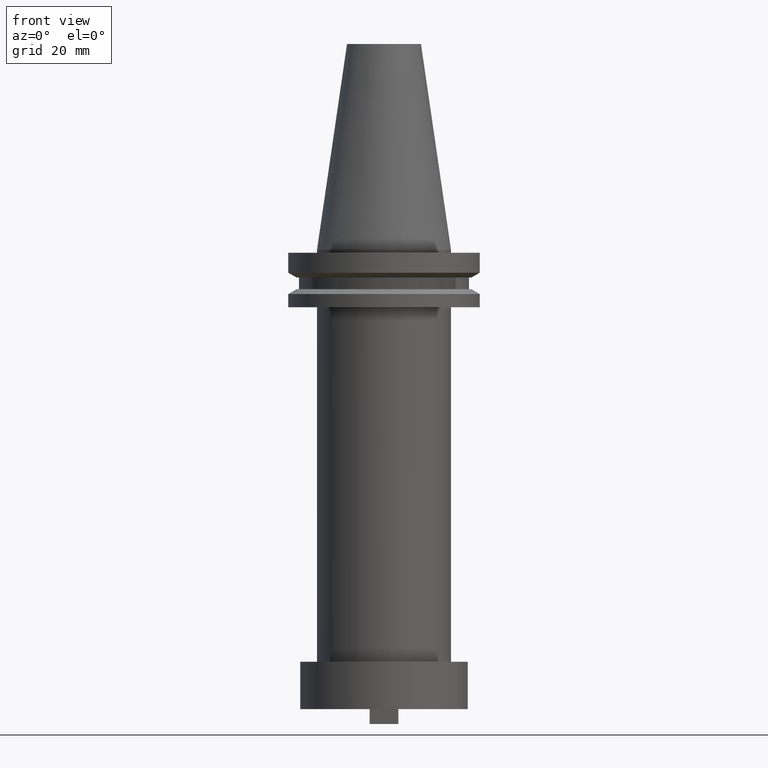
[diagram: clean part render]
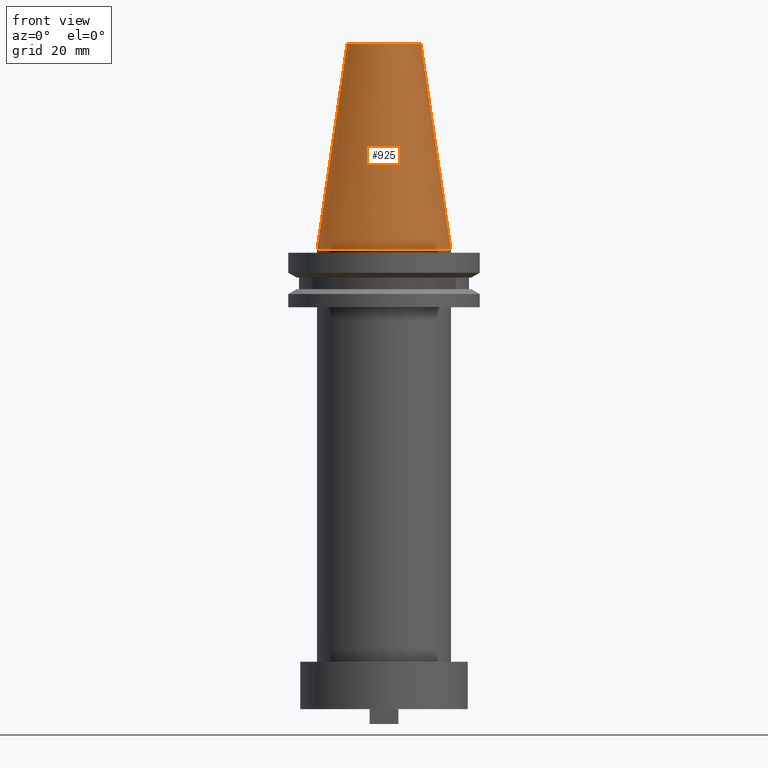
[diagram: same view with one face highlighted and labeled with its STEP entity id]
A machine part, front view. The second image highlights one B-rep face of the part: STEP entity #925.
In plain terms, the highlighted conical surface has half-angle 8.297 deg.
Its self-contained STEP definition (entity closure, byte-faithful):
#14 = CARTESIAN_POINT ( 'NONE',  ( 12.27178102086201150, 2.112318622904291439E-15, 68.25000000000000000 ) ) ;
#25 = FACE_OUTER_BOUND ( 'NONE', #919, .T. ) ;
#35 = VERTEX_POINT ( 'NONE', #163 ) ;
#97 = AXIS2_PLACEMENT_3D ( 'NONE', #838, #587, #583 ) ;
#115 = CIRCLE ( 'NONE', #929, 22.22500000000000142 ) ;
#130 = CARTESIAN_POINT ( 'NONE',  ( -22.22500000000000142, 0.000000000000000000, 0.000000000000000000 ) ) ;
#163 = CARTESIAN_POINT ( 'NONE',  ( -12.27178102086201150, 0.000000000000000000, 68.25000000000000000 ) ) ;
#233 = EDGE_CURVE ( 'NONE', #302, #894, #1041, .T. ) ;
#259 = VECTOR ( 'NONE', #814, 999.9999999999998863 ) ;
#302 = VERTEX_POINT ( 'NONE', #14 ) ;
#319 = VERTEX_POINT ( 'NONE', #1055 ) ;
#325 = ORIENTED_EDGE ( 'NONE', *, *, #850, .T. ) ;
#345 = ORIENTED_EDGE ( 'NONE', *, *, #540, .F. ) ;
#364 = CARTESIAN_POINT ( 'NONE',  ( 0.000000000000000000, 0.000000000000000000, 0.000000000000000000 ) ) ;
#437 = CONICAL_SURFACE ( 'NONE', #1053, 22.22500000000000142, 0.1448138465474119174 ) ;
#459 = EDGE_CURVE ( 'NONE', #319, #894, #115, .T. ) ;
#463 = ORIENTED_EDGE ( 'NONE', *, *, #233, .F. ) ;
#485 = DIRECTION ( 'NONE',  ( 1.000000000000000000, 0.000000000000000000, 0.000000000000000000 ) ) ;
#540 = EDGE_CURVE ( 'NONE', #35, #302, #789, .T. ) ;
#583 = DIRECTION ( 'NONE',  ( 1.000000000000000000, 0.000000000000000000, 0.000000000000000000 ) ) ;
#587 = DIRECTION ( 'NONE',  ( -0.000000000000000000, -0.000000000000000000, 1.000000000000000000 ) ) ;
#612 = DIRECTION ( 'NONE',  ( 0.1443082272672999711, 1.767266086135276757E-17, -0.9895327864921755756 ) ) ;
#708 = VECTOR ( 'NONE', #612, 999.9999999999998863 ) ;
#789 = CIRCLE ( 'NONE', #97, 12.27178102086201150 ) ;
#792 = DIRECTION ( 'NONE',  ( 0.000000000000000000, 0.000000000000000000, -1.000000000000000000 ) ) ;
#814 = DIRECTION ( 'NONE',  ( -0.1443082272672999711, 0.000000000000000000, -0.9895327864921755756 ) ) ;
#838 = CARTESIAN_POINT ( 'NONE',  ( 0.000000000000000000, 0.000000000000000000, 68.25000000000000000 ) ) ;
#850 = EDGE_CURVE ( 'NONE', #35, #319, #984, .T. ) ;
#872 = DIRECTION ( 'NONE',  ( -1.000000000000000000, 0.000000000000000000, 0.000000000000000000 ) ) ;
#873 = CARTESIAN_POINT ( 'NONE',  ( 22.22500000000000142, 2.721777511104992849E-15, 0.000000000000000000 ) ) ;
#894 = VERTEX_POINT ( 'NONE', #1070 ) ;
#897 = CARTESIAN_POINT ( 'NONE',  ( 0.000000000000000000, 0.000000000000000000, 0.000000000000000000 ) ) ;
#904 = DIRECTION ( 'NONE',  ( -0.000000000000000000, -0.000000000000000000, 1.000000000000000000 ) ) ;
#919 = EDGE_LOOP ( 'NONE', ( #463, #345, #325, #1066 ) ) ;
#925 = ADVANCED_FACE ( 'NONE', ( #25 ), #437, .T. ) ;
#929 = AXIS2_PLACEMENT_3D ( 'NONE', #897, #904, #485 ) ;
#984 = LINE ( 'NONE', #130, #259 ) ;
#1041 = LINE ( 'NONE', #873, #708 ) ;
#1053 = AXIS2_PLACEMENT_3D ( 'NONE', #364, #792, #872 ) ;
#1055 = CARTESIAN_POINT ( 'NONE',  ( -22.22500000000000142, 0.000000000000000000, 0.000000000000000000 ) ) ;
#1066 = ORIENTED_EDGE ( 'NONE', *, *, #459, .T. ) ;
#1070 = CARTESIAN_POINT ( 'NONE',  ( 22.22500000000000142, 2.721777511104992849E-15, 0.000000000000000000 ) ) ;